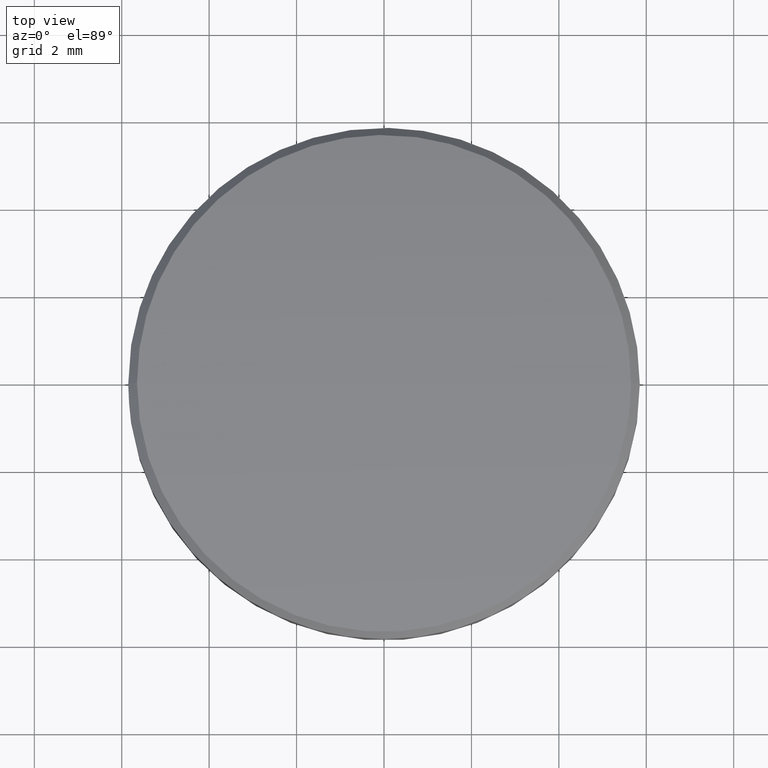
[diagram: clean part render]
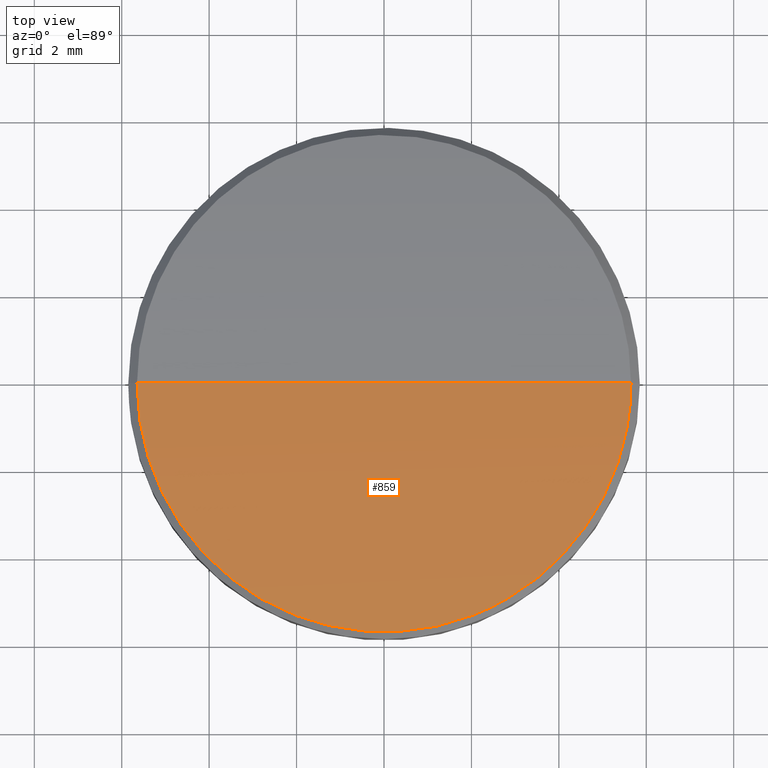
[diagram: same view with one face highlighted and labeled with its STEP entity id]
A machine part, top view. The second image highlights one B-rep face of the part: STEP entity #859.
In plain terms, the highlighted cylindrical surface (partial cylindrical patch) has radius 32.77 mm, axis along (-1, 0, 0).
Its self-contained STEP definition (entity closure, byte-faithful):
#22 = CARTESIAN_POINT ( 'NONE',  ( 5.576628680252848191, -0.9321940374676990215, 2.483644065670258527 ) ) ;
#24 = ORIENTED_EDGE ( 'NONE', *, *, #1420, .T. ) ;
#32 = CARTESIAN_POINT ( 'NONE',  ( 0.7377033516631984478, -5.639137000480408446, 2.007551135051811375 ) ) ;
#42 = CARTESIAN_POINT ( 'NONE',  ( 5.649492942553575148, -0.08222735412014703371, 2.496301224986781087 ) ) ;
#47 = CARTESIAN_POINT ( 'NONE',  ( 40.00000000000000000, 0.000000000000000000, -30.27361021970089539 ) ) ;
#54 = CARTESIAN_POINT ( 'NONE',  ( 4.249121578179862802, -3.751336306344251970, 2.281283048000520175 ) ) ;
#95 = CARTESIAN_POINT ( 'NONE',  ( 5.649999999172907295, -0.0001242152474971794374, 2.496389780112957091 ) ) ;
#153 = ORIENTED_EDGE ( 'NONE', *, *, #1389, .T. ) ;
#170 = CARTESIAN_POINT ( 'NONE',  ( -1.285759299984931880, -5.538669271849189002, 2.024956424361276763 ) ) ;
#187 = CARTESIAN_POINT ( 'NONE',  ( 5.649999989837777292, -0.0003409510842080228066, 2.496389778525414993 ) ) ;
#194 = CARTESIAN_POINT ( 'NONE',  ( 0.9231494240834678955, -5.611363133158311811, 2.012406182291054169 ) ) ;
#204 = CARTESIAN_POINT ( 'NONE',  ( 5.604101588386233956, -0.7469799540118459147, 2.488405051889305941 ) ) ;
#234 = B_SPLINE_CURVE_WITH_KNOTS ( 'NONE', 3,
 ( #439, #1308, #1493, #2119, #659, #1965, #1583, #490, #326, #1646, #822, #763, #497, #1256, #1758, #1486, #1155, #335, #992, #2077, #1914, #1297, #1955, #1654, #170, #833, #931, #1595, #878, #32, #194, #1024, #1539, #544, #998, #1859, #1014, #1187, #54, #2023, #370, #1689, #721, #1849, #1385, #855, #1664, #1200, #843, #22, #204, #866, #1372, #1527, #42, #849, #1516, #531, #187 ),
 .UNSPECIFIED., .F., .F.,
 ( 4, 2, 2, 2, 2, 2, 2, 2, 2, 2, 2, 2, 2, 2, 2, 2, 2, 2, 2, 2, 2, 2, 2, 2, 2, 2, 1, 1, 1, 2, 4 ),
 ( 0.000000000000000000, 0.01562500000000003816, 0.03125000000000006939, 0.04687500000000009714, 0.06250000000000012490, 0.07812500000000016653, 0.09375000000000019429, 0.1250000000000002220, 0.1562500000000002498, 0.1718750000000002220, 0.1875000000000001943, 0.2031250000000001943, 0.2187500000000001665, 0.2500000000000001665, 0.2656250000000001665, 0.2812500000000001110, 0.2968750000000001110, 0.3125000000000001110, 0.3750000000000001110, 0.3906250000000001110, 0.4062500000000001110, 0.4218750000000001110, 0.4375000000000000555, 0.4531250000000000555, 0.4687500000000000555, 0.4843750000000000000, 0.4921875000000000555, 0.4960937500000000555, 0.4980468750000000555, 0.4990234375000000555, 0.5000000000000000000 ),
 .UNSPECIFIED. ) ;
#276 = CARTESIAN_POINT ( 'NONE',  ( 5.649999993236694884, -0.0002911715032857972686, 2.496389779043344692 ) ) ;
#326 = CARTESIAN_POINT ( 'NONE',  ( -5.289244943096626628, -2.007339786141479454, 2.435302769628627573 ) ) ;
#335 = CARTESIAN_POINT ( 'NONE',  ( -2.988229497797779910, -4.828168232492521028, 2.138929579044522189 ) ) ;
#370 = CARTESIAN_POINT ( 'NONE',  ( 4.591860713582851083, -3.317426321003426271, 2.328408646397478687 ) ) ;
#439 = CARTESIAN_POINT ( 'NONE',  ( -5.649999999999995026, -3.321988675846367298E-15, 2.496389780299102856 ) ) ;
#461 = VERTEX_POINT ( 'NONE', #1707 ) ;
#490 = CARTESIAN_POINT ( 'NONE',  ( -5.352609030108888888, -1.829606013157772271, 2.445766596911034707 ) ) ;
#497 = CARTESIAN_POINT ( 'NONE',  ( -4.801402173237844018, -3.002183996483066331, 2.358951801468127218 ) ) ;
#505 = CARTESIAN_POINT ( 'NONE',  ( 5.650000000006020429, 7.541779754095611828E-09, 2.496389780299113959 ) ) ;
#531 = CARTESIAN_POINT ( 'NONE',  ( 5.649999293755059604, -0.01053558493319373644, 2.496389672456714948 ) ) ;
#541 = B_SPLINE_CURVE_WITH_KNOTS ( 'NONE', 3,
 ( #2130, #276, #973, #95, #1477, #505 ),
 .UNSPECIFIED., .F., .F.,
 ( 4, 2, 4 ),
 ( 0.5000000000000000000, 0.5000047684765058786, 0.5000095369530116463 ),
 .UNSPECIFIED. ) ;
#544 = CARTESIAN_POINT ( 'NONE',  ( 1.816490828130963298, -5.386091277269072997, 2.050775427438906284 ) ) ;
#601 = CARTESIAN_POINT ( 'NONE',  ( 40.00000000000000000, 0.000000000000000000, 2.496389780299104633 ) ) ;
#659 = CARTESIAN_POINT ( 'NONE',  ( -5.577418698567454314, -0.9271105475134304719, 2.483781247895979760 ) ) ;
#678 = VECTOR ( 'NONE', #1319, 1000.000000000000000 ) ;
#707 = CARTESIAN_POINT ( 'NONE',  ( 5.649999989837777292, -0.0003409510842080228066, 2.496389778525414993 ) ) ;
#721 = CARTESIAN_POINT ( 'NONE',  ( 4.891756536474622941, -2.850731633366157425, 2.372577955601150812 ) ) ;
#726 = DIRECTION ( 'NONE',  ( 0.000000000000000000, 0.000000000000000000, 1.000000000000000000 ) ) ;
#763 = CARTESIAN_POINT ( 'NONE',  ( -4.895192117851593139, -2.844638165289826048, 2.373101450701747162 ) ) ;
#822 = CARTESIAN_POINT ( 'NONE',  ( -5.068834579521123374, -2.518022625457768449, 2.399915932820665176 ) ) ;
#833 = CARTESIAN_POINT ( 'NONE',  ( -0.7411618227156465677, -5.647873758792636423, 2.006102918122200318 ) ) ;
#843 = CARTESIAN_POINT ( 'NONE',  ( 5.503511868639782811, -1.299643908913898249, 2.471124009637112540 ) ) ;
#849 = CARTESIAN_POINT ( 'NONE',  ( 5.649817703065244778, -0.04713836172389020140, 2.496357964897444770 ) ) ;
#855 = CARTESIAN_POINT ( 'NONE',  ( 5.289102719874374969, -2.007740827613404111, 2.435278763650477352 ) ) ;
#859 = ADVANCED_FACE ( 'NONE', ( #883 ), #860, .T. ) ;
#860 = CYLINDRICAL_SURFACE ( 'NONE', #991, 32.77000000000000313 ) ;
#866 = CARTESIAN_POINT ( 'NONE',  ( 5.631629124072432546, -0.4675063911121933313, 2.493187284803119574 ) ) ;
#878 = CARTESIAN_POINT ( 'NONE',  ( 0.3679015131730842270, -5.675702198101968854, 2.001142282529500882 ) ) ;
#883 = FACE_OUTER_BOUND ( 'NONE', #1158, .T. ) ;
#931 = CARTESIAN_POINT ( 'NONE',  ( -0.3722172564485162760, -5.684455087674598950, 1.999596475867604584 ) ) ;
#973 = CARTESIAN_POINT ( 'NONE',  ( 5.649999995783508311, -0.0002378684197701482676, 2.496389779485066018 ) ) ;
#991 = AXIS2_PLACEMENT_3D ( 'NONE', #47, #1533, #726 ) ;
#992 = CARTESIAN_POINT ( 'NONE',  ( -2.827998122936864700, -4.924842737130777692, 2.124332181825028698 ) ) ;
#998 = CARTESIAN_POINT ( 'NONE',  ( 1.989168174768660036, -5.324019105895263060, 2.061092067939152450 ) ) ;
#1014 = CARTESIAN_POINT ( 'NONE',  ( 3.469615266477130255, -4.547933098237850302, 2.183599030847147127 ) ) ;
#1024 = CARTESIAN_POINT ( 'NONE',  ( 1.284626420902344801, -5.538914276475084719, 2.024914204175219279 ) ) ;
#1155 = CARTESIAN_POINT ( 'NONE',  ( -3.451506791460218437, -4.516180493919613959, 2.184380976495492899 ) ) ;
#1158 = EDGE_LOOP ( 'NONE', ( #24, #1937, #153 ) ) ;
#1187 = CARTESIAN_POINT ( 'NONE',  ( 4.124118333190049945, -3.890057437177046662, 2.264950441043733775 ) ) ;
#1200 = CARTESIAN_POINT ( 'NONE',  ( 5.458851665571438971, -1.477865802028127007, 2.463531405776418826 ) ) ;
#1256 = CARTESIAN_POINT ( 'NONE',  ( -4.492324249006451886, -3.467784685025186331, 2.313881562193473851 ) ) ;
#1297 = CARTESIAN_POINT ( 'NONE',  ( -1.995529901010125728, -5.321567155467700871, 2.061494971847744662 ) ) ;
#1308 = CARTESIAN_POINT ( 'NONE',  ( -5.649999851307224930, -0.1869074482729350117, 2.496389780299105521 ) ) ;
#1317 = EDGE_CURVE ( 'NONE', #1543, #461, #541, .T. ) ;
#1319 = DIRECTION ( 'NONE',  ( -1.000000000000000000, 0.000000000000000000, 0.000000000000000000 ) ) ;
#1372 = CARTESIAN_POINT ( 'NONE',  ( 5.641954346868243597, -0.3275942177272531675, 2.494985276855031575 ) ) ;
#1376 = VERTEX_POINT ( 'NONE', #1468 ) ;
#1385 = CARTESIAN_POINT ( 'NONE',  ( 5.147604725275796156, -2.350734186980787843, 2.412418761168445336 ) ) ;
#1389 = EDGE_CURVE ( 'NONE', #461, #1376, #2139, .T. ) ;
#1420 = EDGE_CURVE ( 'NONE', #1376, #1543, #234, .T. ) ;
#1468 = CARTESIAN_POINT ( 'NONE',  ( -5.649999999999995026, -3.321988675846367298E-15, 2.496389780299102856 ) ) ;
#1477 = CARTESIAN_POINT ( 'NONE',  ( 5.650000000014506085, -5.711763839469005937E-05, 2.496389780299117955 ) ) ;
#1486 = CARTESIAN_POINT ( 'NONE',  ( -3.735089995250176820, -4.281358844065268343, 2.216579290369068644 ) ) ;
#1493 = CARTESIAN_POINT ( 'NONE',  ( -5.640721476654664279, -0.3747832055636876047, 2.494767021134238316 ) ) ;
#1516 = CARTESIAN_POINT ( 'NONE',  ( 5.649962573717871805, -0.02374224465585507426, 2.496383267490283053 ) ) ;
#1527 = CARTESIAN_POINT ( 'NONE',  ( 5.647982986297257035, -0.1640652466483906169, 2.496037446031334373 ) ) ;
#1533 = DIRECTION ( 'NONE',  ( -1.000000000000000000, 0.000000000000000000, 0.000000000000000000 ) ) ;
#1539 = CARTESIAN_POINT ( 'NONE',  ( 1.463265029667627948, -5.493876346668104205, 2.032630808924089649 ) ) ;
#1543 = VERTEX_POINT ( 'NONE', #707 ) ;
#1583 = CARTESIAN_POINT ( 'NONE',  ( -5.460651969159201258, -1.471299946877155485, 2.463835525151352623 ) ) ;
#1595 = CARTESIAN_POINT ( 'NONE',  ( 0.1814575475092214951, -5.684812928286230971, 1.999533444730977161 ) ) ;
#1646 = CARTESIAN_POINT ( 'NONE',  ( -5.147888511180640947, -2.350102406305307312, 2.412463583073798823 ) ) ;
#1654 = CARTESIAN_POINT ( 'NONE',  ( -1.467275592103361115, -5.492857043170847220, 2.032805303070462699 ) ) ;
#1664 = CARTESIAN_POINT ( 'NONE',  ( 5.351369751095118588, -1.833103270241715821, 2.445562470573424463 ) ) ;
#1689 = CARTESIAN_POINT ( 'NONE',  ( 4.797339813114334994, -3.008703408921135303, 2.358347357770104846 ) ) ;
#1707 = CARTESIAN_POINT ( 'NONE',  ( 5.650000000006020429, 7.541779754095611828E-09, 2.496389780299113959 ) ) ;
#1758 = CARTESIAN_POINT ( 'NONE',  ( -4.255326301522692312, -3.757902877326982249, 2.281275956056098675 ) ) ;
#1849 = CARTESIAN_POINT ( 'NONE',  ( 5.067470183573483666, -2.520947805744672809, 2.399698388143165051 ) ) ;
#1859 = CARTESIAN_POINT ( 'NONE',  ( 2.847940324707502135, -4.966368583573826712, 2.119168398628919814 ) ) ;
#1914 = CARTESIAN_POINT ( 'NONE',  ( -2.336547707228918913, -5.179143373072494505, 2.084612516720021347 ) ) ;
#1937 = ORIENTED_EDGE ( 'NONE', *, *, #1317, .T. ) ;
#1955 = CARTESIAN_POINT ( 'NONE',  ( -1.823592208102848611, -5.383713357025328605, 2.051172732641736829 ) ) ;
#1965 = CARTESIAN_POINT ( 'NONE',  ( -5.505240887745954659, -1.292029813626758061, 2.471418237904677184 ) ) ;
#2023 = CARTESIAN_POINT ( 'NONE',  ( 4.482624099746810309, -3.465337830768570271, 2.312967285053600275 ) ) ;
#2077 = CARTESIAN_POINT ( 'NONE',  ( -2.502742353874767289, -5.099933938359620278, 2.097231932804634713 ) ) ;
#2119 = CARTESIAN_POINT ( 'NONE',  ( -5.604425272057676821, -0.7441042461248373874, 2.488461117742857720 ) ) ;
#2130 = CARTESIAN_POINT ( 'NONE',  ( 5.649999989837777292, -0.0003409510842080228066, 2.496389778525414993 ) ) ;
#2139 = LINE ( 'NONE', #601, #678 ) ;